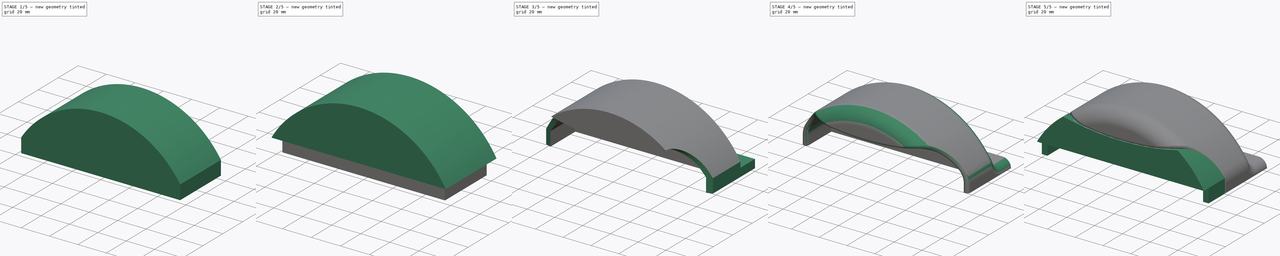
[diagram: build sequence overview — one tinted view per stage of 5, left to right]
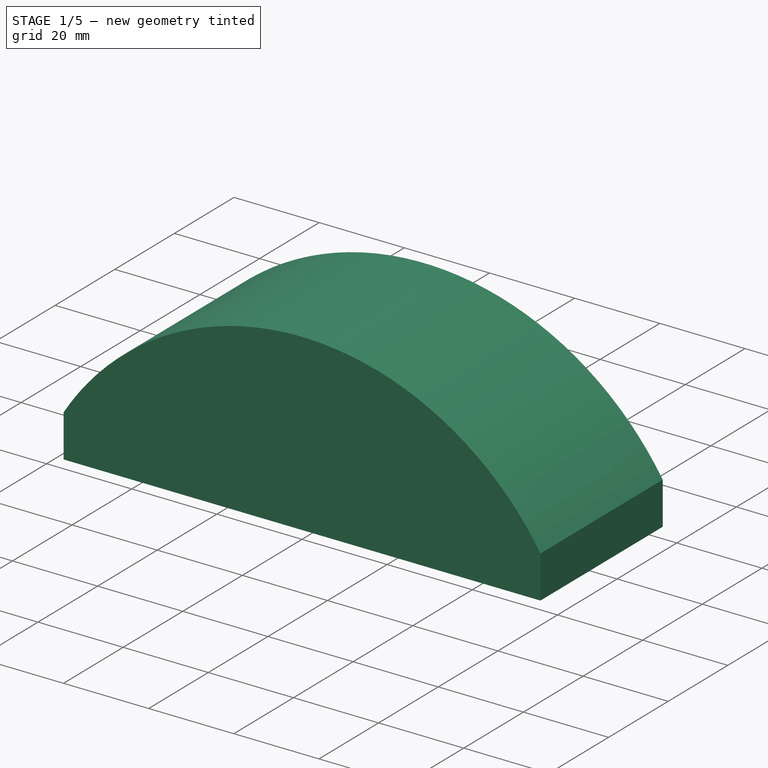
[diagram: stage 1 of 5 — iso view after this stage's code; geometry added in this stage tinted green]
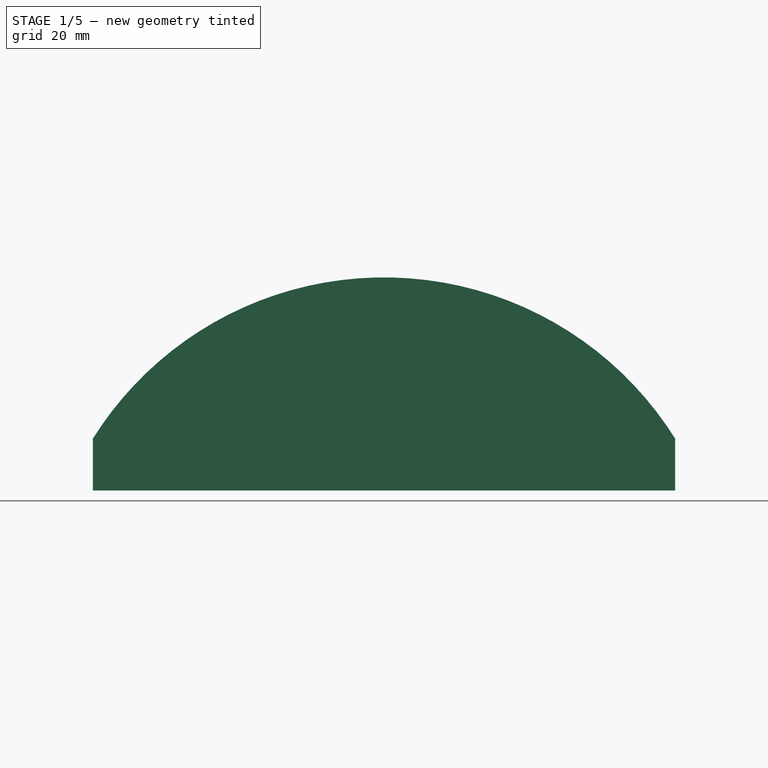
[diagram: stage 1 of 5 — front view after this stage's code; geometry added in this stage tinted green]
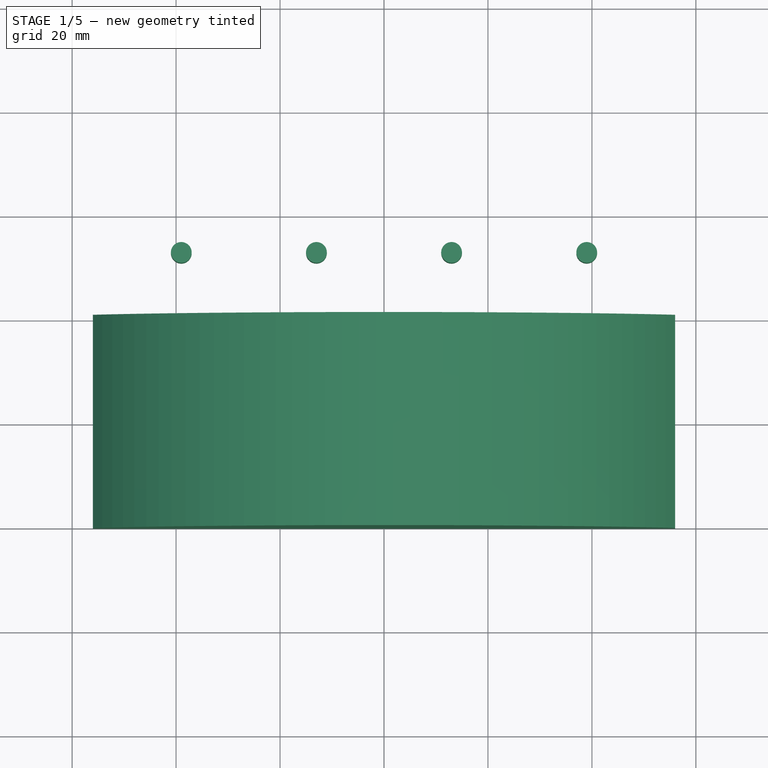
[diagram: stage 1 of 5 — top view after this stage's code; geometry added in this stage tinted green]
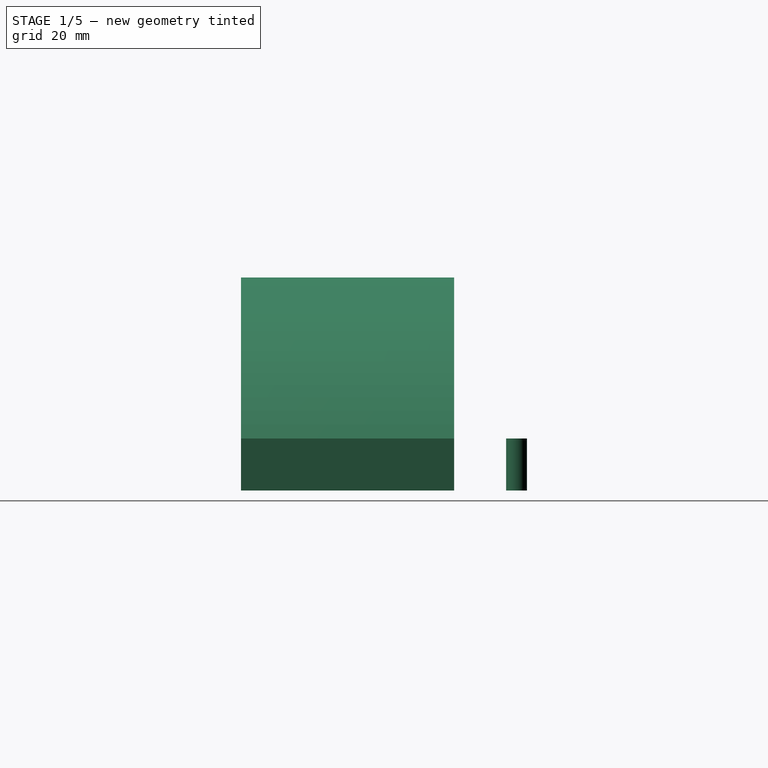
[diagram: stage 1 of 5 — right view after this stage's code; geometry added in this stage tinted green]
FCSTD DOCUMENT  (FreeCAD 0.18R4 (GitTag))
Label: Wheel Cover
License: All rights reserved
LicenseURL: http://en.wikipedia.org/wiki/All_rights_reserved
objects: Part::FeaturePython×7, Sketcher::SketchObject×5, Part::Fillet×5, Part::Box×3, Part::MultiFuse×3, Part::Face×3, App::DocumentObjectGroup×3, Part::Cut×2, Part::Extrusion×2, Raytracing::RayFeature×2, Part::Cylinder×1, Part::Sweep×1, Part::Chamfer×1, Raytracing::RayProject×1
note: 33 computed .brp shape members not serialized (recipe doc carries the construction recipe); baked Part::Feature solids carry a one-line shape summary decoded from their .brp

FEATURE [Part::Cylinder] Cylinder002  label="Cilindro001"
  Angle = 360
  AttacherType = Attacher::AttachEngine3D
  Height = 10
  Placement = pos=(0,53,0) rot=(0,0,1;0rad)
  Radius = 2
FEATURE [Part::FeaturePython] Array  # Draft array (typed FeaturePython)
  Angle = 360
  ArrayType = 0
  Axis = (0,0,1)
  Base = -> Cylinder002
  Center = (0,0,0)
  Fuse = false
  IntervalAxis = (0,0,0)
  IntervalX = (26,0,0)
  IntervalY = (0,1,0)
  IntervalZ = (0,0,1)
  NumberPolar = 1
  NumberX = 4
  NumberY = 1
  NumberZ = 1
  Placement = pos=(-39,0,0) rot=(0,0,1;0rad)
FEATURE [Part::Box] Box003  label="cube"
  AttacherType = Attacher::AttachEngine3D
  Height = 10
  Length = 112
  Placement = pos=(-56,0,0) rot=(0,0,1;0rad)
  Width = 41
FEATURE [Part::Face] Face003
  FaceMakerClass = Part::FaceMakerBullseye
  Sources = -> [Sketch003]
FEATURE [Part::Extrusion] Extrude
  Base = -> Face003
  Dir = (0,1,-2e-16)
  DirMode = 2
  FaceMakerClass = Part::FaceMakerBullseye
  LengthFwd = 41
  LengthRev = 0
  Solid = false
  Symmetric = false
FEATURE [Part::MultiFuse] Fusion  label="inner"
  Refine = true
  Shapes = -> [Box003,Extrude]
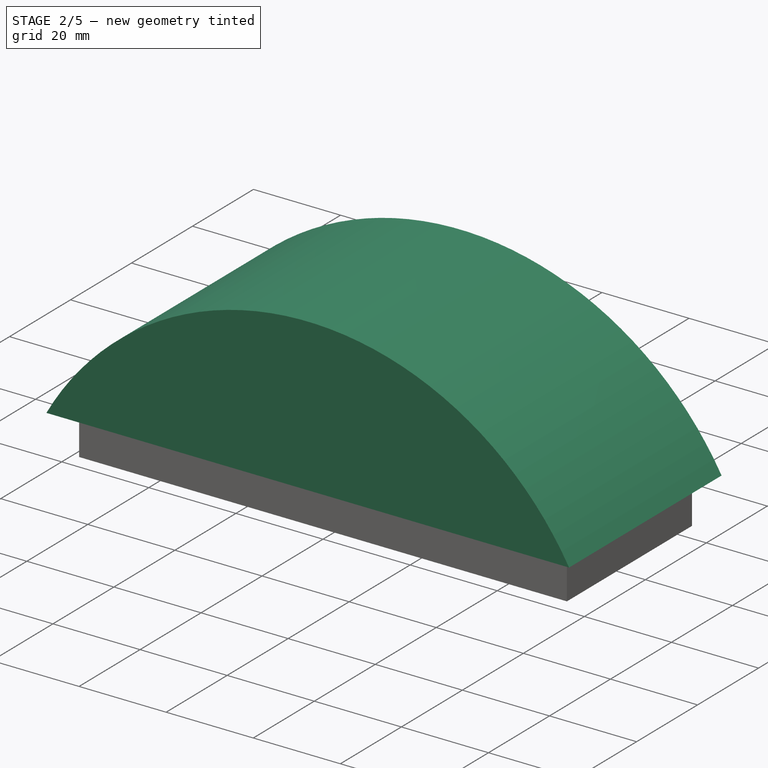
[diagram: stage 2 of 5 — iso view after this stage's code; geometry added in this stage tinted green]
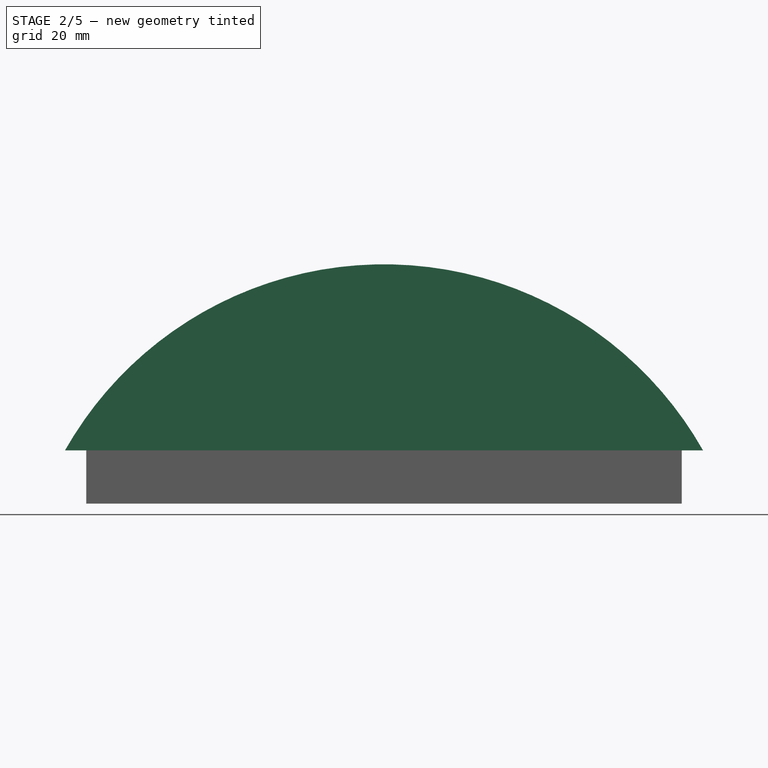
[diagram: stage 2 of 5 — front view after this stage's code; geometry added in this stage tinted green]
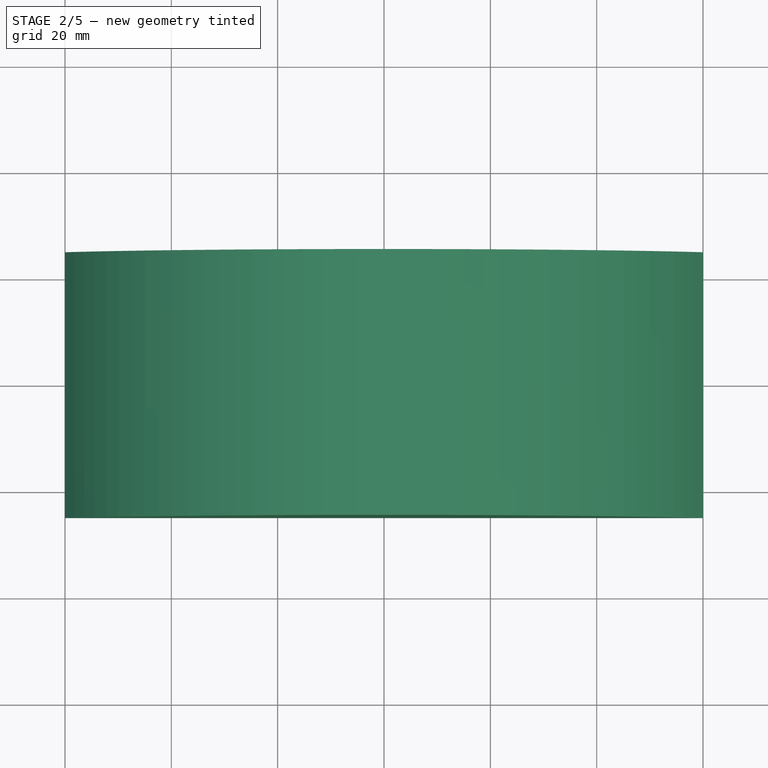
[diagram: stage 2 of 5 — top view after this stage's code; geometry added in this stage tinted green]
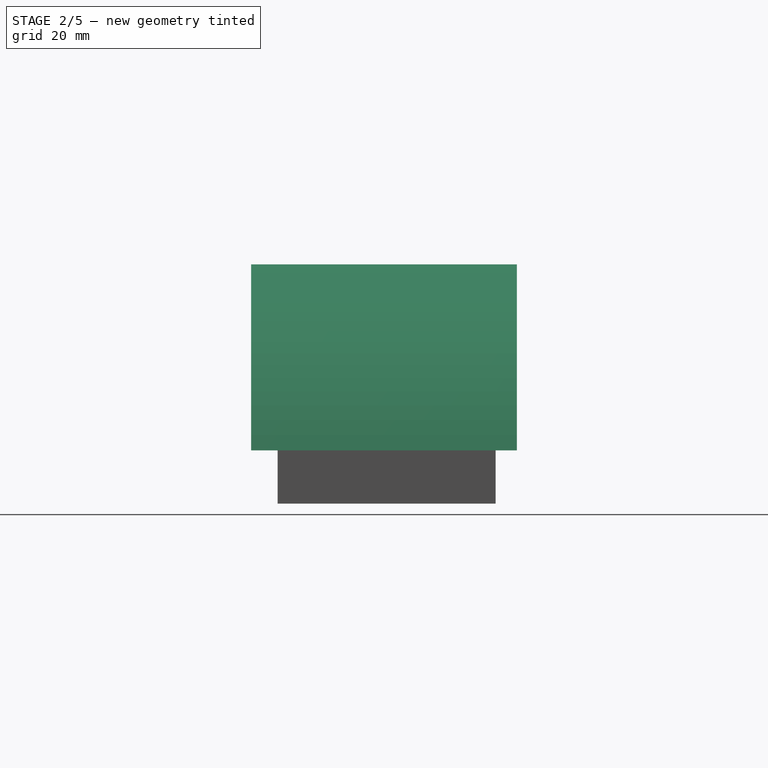
[diagram: stage 2 of 5 — right view after this stage's code; geometry added in this stage tinted green]
FEATURE [Part::Box] Box  label="base002"
  AttacherType = Attacher::AttachEngine3D
  Height = 6
  Length = 120
  Placement = pos=(-60,0,0) rot=(0,0,1;0rad)
  Width = 60
FEATURE [Part::Box] Box002  label="base001"
  AttacherType = Attacher::AttachEngine3D
  Height = 4
  Length = 120
  Placement = pos=(-60,0,6) rot=(0,0,1;0rad)
  Width = 45
FEATURE [Part::MultiFuse] Fusion002
  Refine = true
  Shapes = -> [Box,Box002]
FEATURE [Part::Cut] Cut  label="base"
  Base = -> Fusion002
  Refine = true
  Tool = -> Array
FEATURE [Sketcher::SketchObject] Sketch001  label="slice sketch"
  Placement = pos=(65,0,5) rot=(0.57735,0.57735,0.57735;2.0944rad)
  sketch-geometry (3):
    g0: LineSegment StartX=20 StartY=-10 StartZ=0 EndX=20 EndY=35 EndZ=0
    g1: LineSegment StartX=-5 StartY=60 StartZ=0 EndX=-19.9179 EndY=60 EndZ=0
    g2: ArcOfCircle CenterX=-5 CenterY=35 CenterZ=0 NormalX=0 NormalY=0 NormalZ=1 AngleXU=0 Radius=25 StartAngle=0 EndAngle=1.5708
  constraints (8):
    c: Vertical(g0)
    c: Horizontal(g1)
    c: DistanceX(g0) = 20
    c: Tangent(g1,g2) = -1.5708
    c: Tangent(g0,g2) = -1.5708
    c: DistanceX(g1,g0) = 25
    c: DistanceY(g-1,g1) = 60
    c: DistanceY(g0,g-1) = 10
FEATURE [Sketcher::SketchObject] Sketch
  ExternalGeometry = -> [Sketch001]
  Placement = pos=(0,0,60) rot=(1,0,0;1.22173rad)
  sketch-geometry (1):
    g0: ArcOfCircle CenterX=-4.33e-14 CenterY=171.392 CenterZ=0 NormalX=0 NormalY=0 NormalZ=1 AngleXU=0 Radius=180.513 StartAngle=4.34403 EndAngle=5.08075
  constraints (3):
    c: Coincident(g0,g-3)
    c: DistanceX(g0,g0) = 130
    c: Horizontal(g0,g0)
FEATURE [Part::Sweep] Sweep
  Frenet = false
  Placement = pos=(0,0,-25) rot=(0,0,1;0rad)
  Sections = -> [Sketch]
  Solid = false
  Spine = -> Sketch001 [Edge2,Edge1]
  Transition = 1
FEATURE [Sketcher::SketchObject] Sketch002  label="sketch"
  Placement = pos=(0,41,0) rot=(1,0,0;1.5708rad)
  sketch-geometry (4):
    g0: LineSegment StartX=-70 StartY=73.0691 StartZ=0 EndX=70 EndY=73.0691 EndZ=0
    g1: LineSegment StartX=70 StartY=73.0691 StartZ=0 EndX=70 EndY=-6.93093 EndZ=0
    g2: LineSegment StartX=70 StartY=-6.93093 StartZ=0 EndX=-70 EndY=-6.93093 EndZ=0
    g3: LineSegment StartX=-70 StartY=-6.93093 StartZ=0 EndX=-70 EndY=73.0691 EndZ=0
  constraints (8):
    c: Coincident(g0,g1)
    c: Coincident(g1,g2)
    c: Coincident(g2,g3)
    c: Coincident(g3,g0)
    c: DistanceX(g2,g1) = 140
    c: Symmetric(g1,g2,g-2)
    c: DistanceY(g1,g1) = 80
    c: Horizontal(g0)
FEATURE [Part::Face] Face  label="slice for printer"
  FaceMakerClass = Part::FaceMakerBullseye
  Sources = -> [Sketch002]
FEATURE [App::DocumentObjectGroup] Group  label="wheel shape slice"
  Group = -> [Sweep,Sketch001]
FEATURE [Sketcher::SketchObject] Sketch003
  ExternalGeometry = -> [Box003]
  Placement = pos=(0,0,0) rot=(-1,0,0;4.71239rad)
  sketch-geometry (3):
    g0: ArcOfCircle CenterX=-1.51e-14 CenterY=-25.0806 CenterZ=0 NormalX=0 NormalY=0 NormalZ=1 AngleXU=0 Radius=66.0806 StartAngle=0.559634 EndAngle=2.58196
    g1: LineSegment StartX=-56 StartY=10 StartZ=0 EndX=56 EndY=10 EndZ=0
    g2: LineSegment [constr] StartX=0 StartY=41 StartZ=0 EndX=0 EndY=0 EndZ=0
  constraints (8):
    c: Coincident(g1,g0)
    c: Coincident(g1,g0)
    c: PointOnObject(g2,g0)
    c: Coincident(g2,g-1)
    c: Vertical(g2)
    c: DistanceY(g-1,g2) = 41
    c: Coincident(g1,g-4)
    c: Coincident(g1,g-3)
FEATURE [Sketcher::SketchObject] Sketch004
  ExternalGeometry = -> [Cut]
  Placement = pos=(0,0,0) rot=(-1,0,0;4.71239rad)
  sketch-geometry (3):
    g0: ArcOfCircle CenterX=1.3e-15 CenterY=-23.9286 CenterZ=0 NormalX=0 NormalY=0 NormalZ=1 AngleXU=0 Radius=68.9286 StartAngle=0.514647 EndAngle=2.62695
    g1: LineSegment StartX=-60 StartY=10 StartZ=0 EndX=60 EndY=10 EndZ=0
    g2: LineSegment [constr] StartX=0 StartY=0 StartZ=0 EndX=0 EndY=45 EndZ=0
  constraints (8):
    c: Coincident(g0,g-3)
    c: Coincident(g0,g-4)
    c: Coincident(g1,g0)
    c: Coincident(g1,g0)
    c: PointOnObject(g2,g0)
    c: Vertical(g2)
    c: Coincident(g-1,g2)
    c: DistanceY(g0,g2) = 35
FEATURE [Part::Face] Face002
  FaceMakerClass = Part::FaceMakerBullseye
  Sources = -> [Sketch004]
FEATURE [Part::Extrusion] Extrude001  label="base wheel"
  Base = -> Face002
  Dir = (0,1,-2e-16)
  DirMode = 2
  FaceMakerClass = Part::FaceMakerBullseye
  LengthFwd = 50
  LengthRev = 0
  Placement = pos=(0,-5,0) rot=(0,0,1;0rad)
  Solid = false
  Symmetric = false
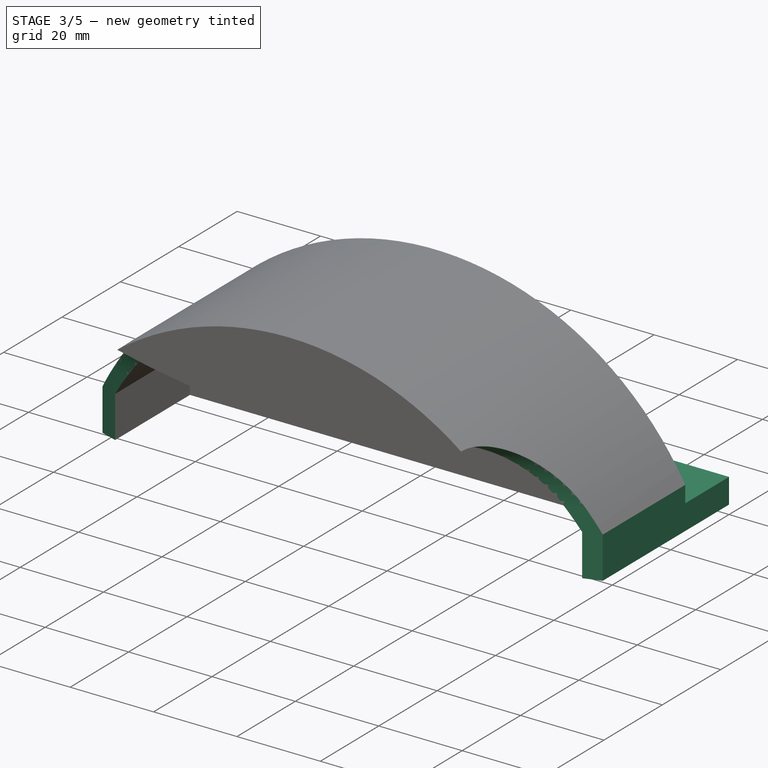
[diagram: stage 3 of 5 — iso view after this stage's code; geometry added in this stage tinted green]
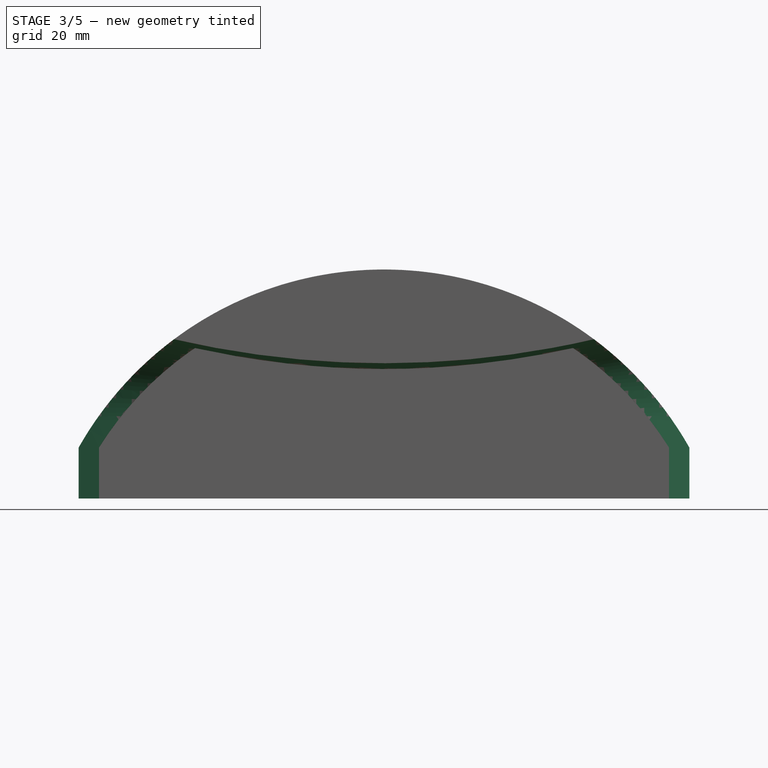
[diagram: stage 3 of 5 — front view after this stage's code; geometry added in this stage tinted green]
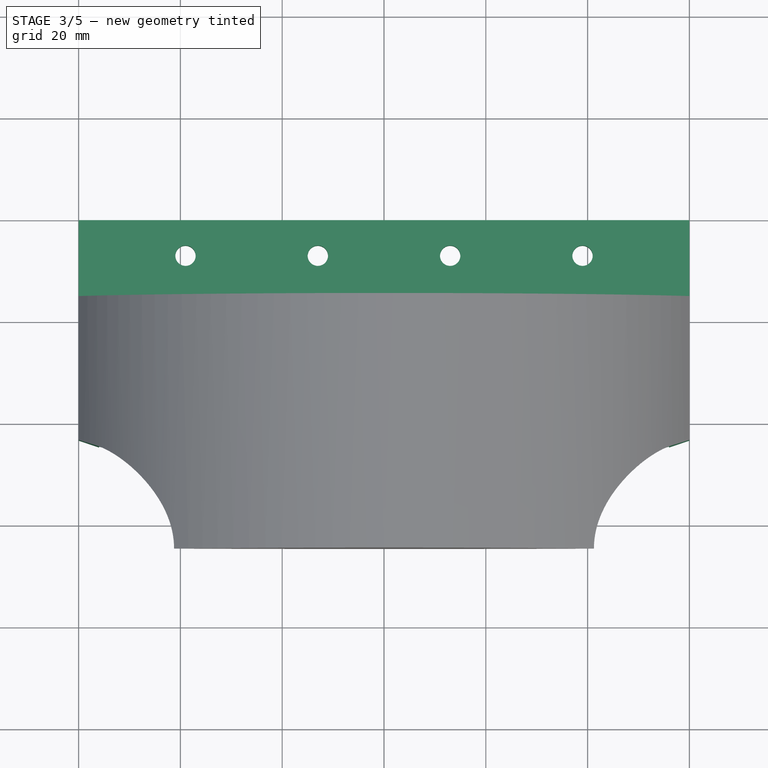
[diagram: stage 3 of 5 — top view after this stage's code; geometry added in this stage tinted green]
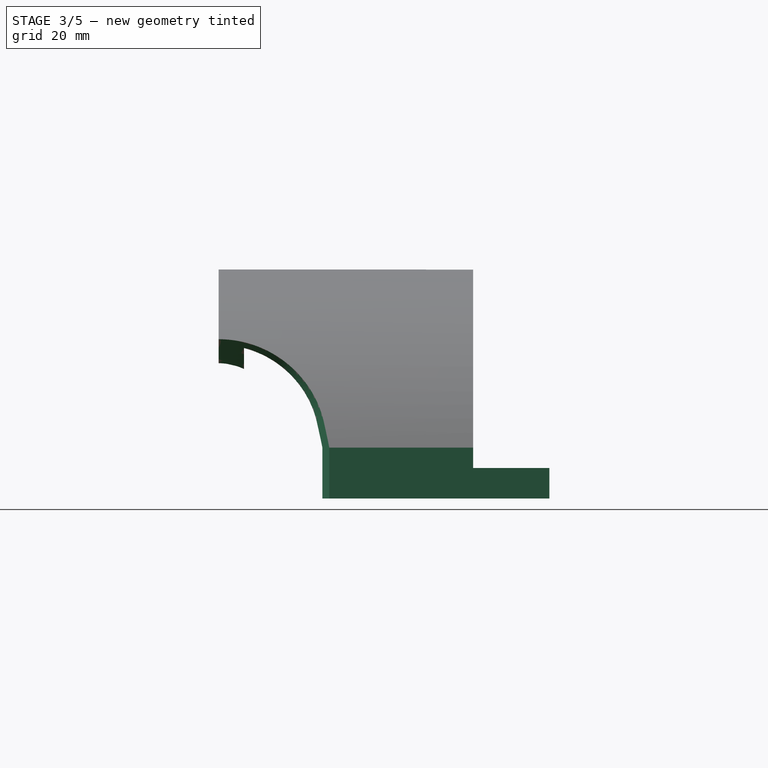
[diagram: stage 3 of 5 — right view after this stage's code; geometry added in this stage tinted green]
FEATURE [Part::MultiFuse] Fusion003  label="outer"
  Refine = true
  Shapes = -> [Extrude001,Cut]
FEATURE [Part::Cut] Cut001  label="wheel shape"
  Base = -> Fusion003
  Refine = true
  Tool = -> Fusion
FEATURE [Part::FeaturePython] Slice  # WARN: FeaturePython — macro-defined, semantics opaque (R4)
  Base = -> Cut001
  Mode = 1
  Tolerance = 0
  Tools = -> [Sweep]
FEATURE [Part::FeaturePython] Slice_child1  label="Slice.1"  # WARN: FeaturePython — macro-defined, semantics opaque (R4)
  Base = -> Slice
  FilterType = 1
  Invert = false
  OverrideMaxVal = 0
  WindowFrom = 80
  WindowTo = 100
  items = 1
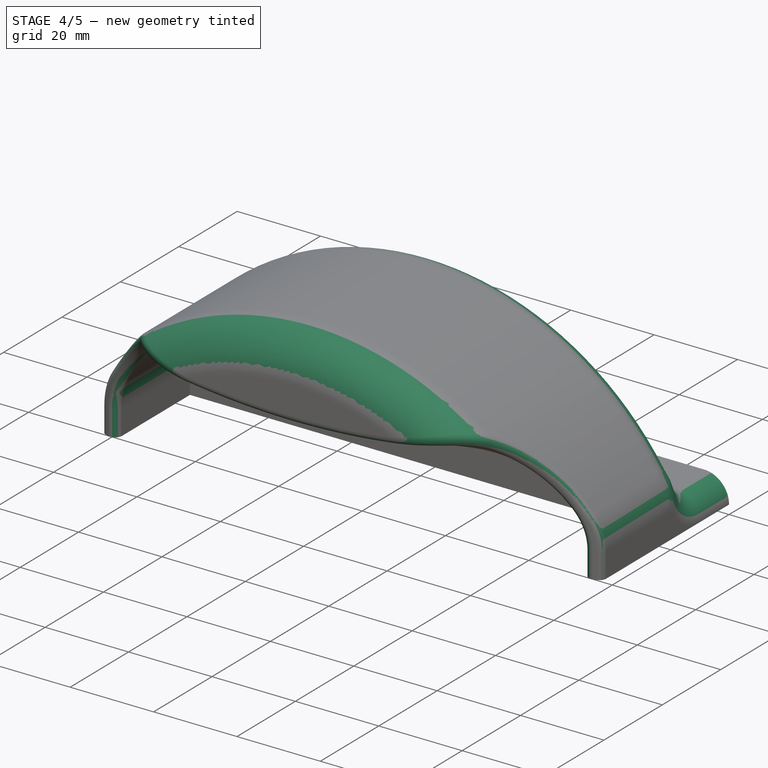
[diagram: stage 4 of 5 — iso view after this stage's code; geometry added in this stage tinted green]
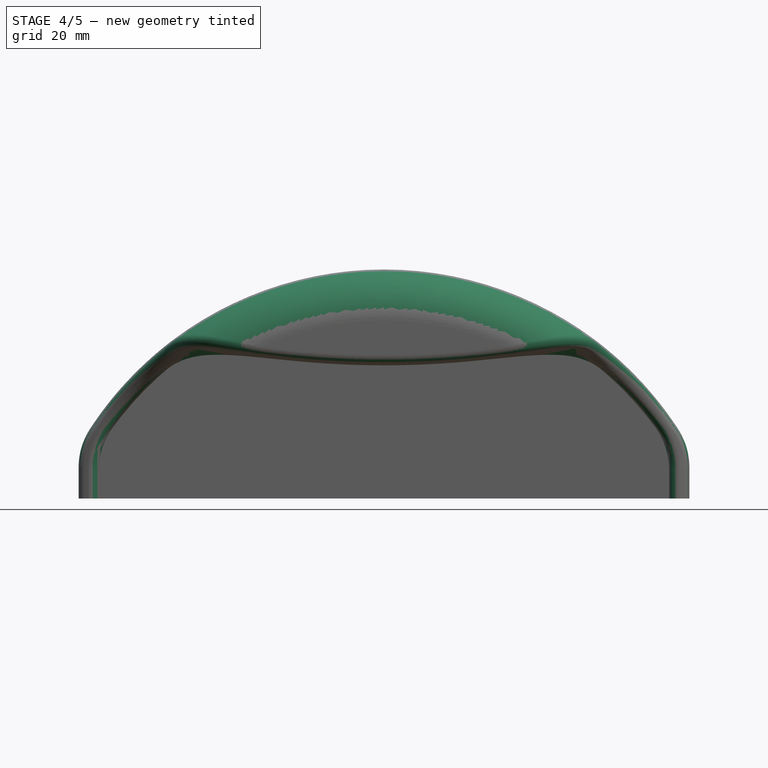
[diagram: stage 4 of 5 — front view after this stage's code; geometry added in this stage tinted green]
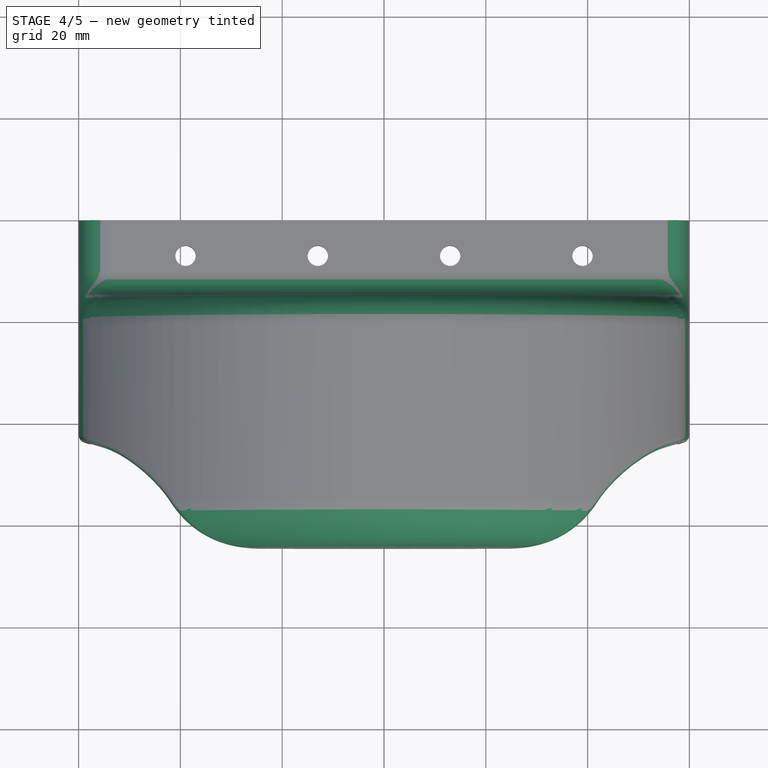
[diagram: stage 4 of 5 — top view after this stage's code; geometry added in this stage tinted green]
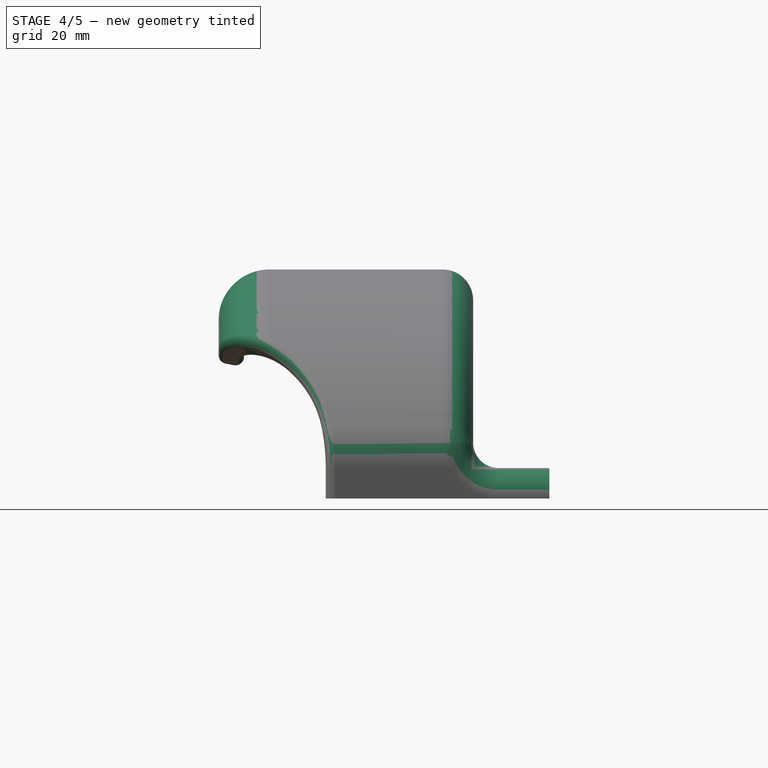
[diagram: stage 4 of 5 — right view after this stage's code; geometry added in this stage tinted green]
FEATURE [App::DocumentObjectGroup] GrExplode_Slice  label="wheel slices"
  Group = -> [Slice_child0,Slice_child1]
FEATURE [Part::Fillet] Fillet
  Base = -> Slice_child1
  Edges = 2 edges r=10: [Edge1,Edge32]
FEATURE [Part::Fillet] Fillet001
  Base = -> Fillet
  Edges = 4 edges r=14: [Edge5,Edge8,Edge38,Edge40]
FEATURE [Part::Fillet] Fillet002
  Base = -> Fillet001
  Edges = 24 edges r=1.7: [Edge1,Edge3,Edge7,Edge8,Edge9,Edge10,Edge11,Edge12,Edge14,Edge15,Edge18,Edge19,Edge20,Edge21,Edge22,Edge23,Edge24,Edge25,Edge26,Edge32,Edge34,Edge35,Edge37,Edge38]
FEATURE [Part::Fillet] Fillet003
  Base = -> Fillet002
  Edges = 1 edges r=5: [Edge18]
FEATURE [Part::Fillet] Fillet004
  Base = -> Fillet003
  Edges = 1 edges r=5.99: [Edge8]
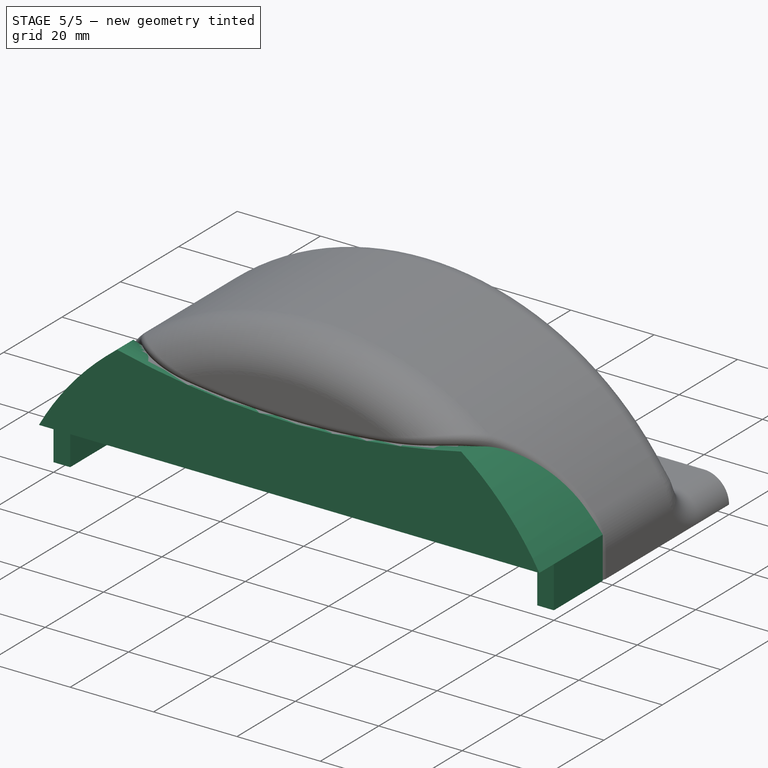
[diagram: stage 5 of 5 — iso view after this stage's code; geometry added in this stage tinted green]
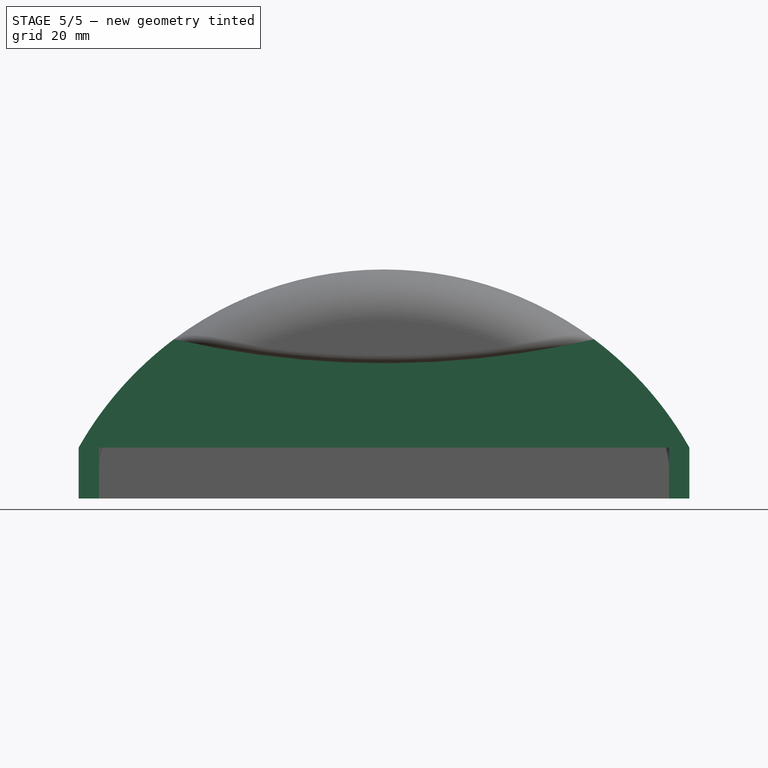
[diagram: stage 5 of 5 — front view after this stage's code; geometry added in this stage tinted green]
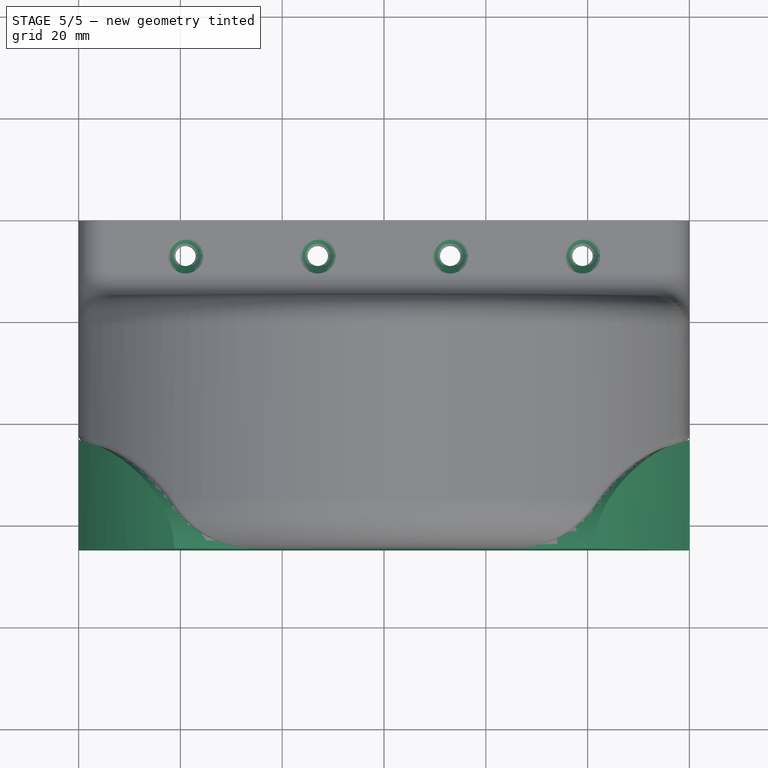
[diagram: stage 5 of 5 — top view after this stage's code; geometry added in this stage tinted green]
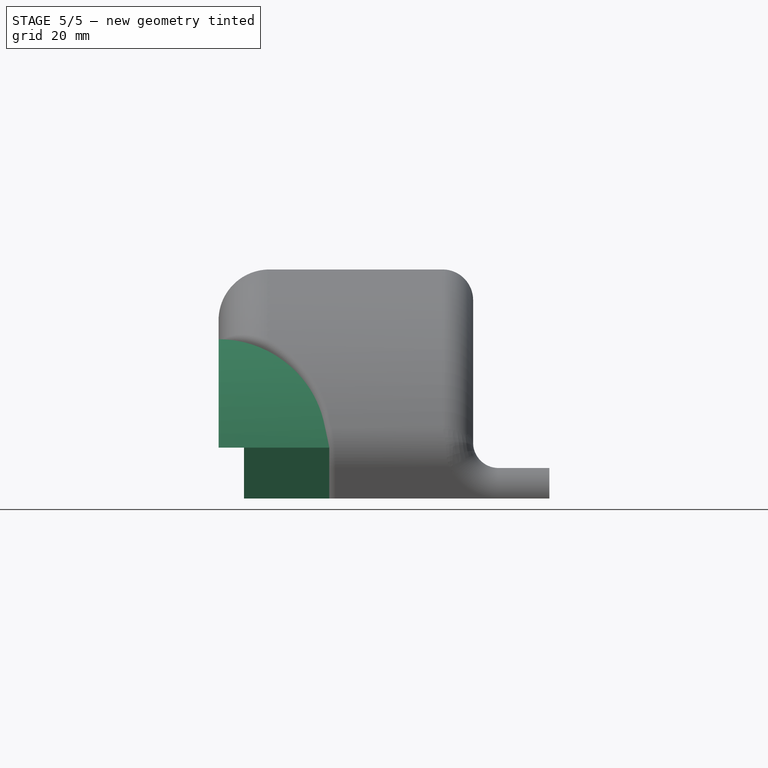
[diagram: stage 5 of 5 — right view after this stage's code; geometry added in this stage tinted green]
FEATURE [Part::FeaturePython] Slice_child0  label="Slice.0"  # WARN: FeaturePython — macro-defined, semantics opaque (R4)
  Base = -> Slice
  FilterType = 1
  Invert = false
  OverrideMaxVal = 0
  WindowFrom = 80
  WindowTo = 100
  items = 0
FEATURE [Part::Chamfer] Chamfer  label="rounded"
  Base = -> Fillet004
  Edges = 4 edges r=1.5: [Edge101,Edge102,Edge103,Edge104]
FEATURE [Part::FeaturePython] Slice001  # WARN: FeaturePython — macro-defined, semantics opaque (R4)
  Base = -> Chamfer
  Mode = 1
  Tolerance = 0
  Tools = -> [Face]
FEATURE [Part::FeaturePython] Slice001_child0  label="Slice001.0"  # WARN: FeaturePython — macro-defined, semantics opaque (R4)
  Base = -> Slice001
  FilterType = 1
  Invert = false
  OverrideMaxVal = 0
  WindowFrom = 80
  WindowTo = 100
  items = 0
FEATURE [Part::FeaturePython] Slice001_child1  label="Slice001.1"  # WARN: FeaturePython — macro-defined, semantics opaque (R4)
  Base = -> Slice001
  FilterType = 1
  Invert = false
  OverrideMaxVal = 0
  WindowFrom = 80
  WindowTo = 100
  items = 1
FEATURE [App::DocumentObjectGroup] GrExplode_Slice001  label="wheel printer slices"
  Group = -> [Slice001_child0,Slice001_child1]
FEATURE [Raytracing::RayFeature] Slice001_child0_View
  Result = <blob: 120928 chars omitted>
  Source = -> Slice001_child0
  Transparency = 0
FEATURE [Raytracing::RayFeature] Slice001_child1_View
  Result = <blob: 251312 chars omitted>
  Source = -> Slice001_child1
  Transparency = 0
FEATURE [Raytracing::RayProject] PovProject
  Camera = // declares position and view direction\n\n// Generated by FreeCAD (http://www.freecadweb.org/)\n#declare cam_location =  <-13.011,218.197,101.492>;\n#declare cam_look_at  = <-3.86452,10.3696,23.3662>;\n#declare cam_sky      = <0.0124906,0.35233,-0.935792>;\n#declare cam_angle    = 45; \ncamera {\n  location  cam_location\n  look_at   cam_look_at\n  sky       cam_sky\n  angle     cam_angle \n  right x*1280/720\n}
  Group = -> [Slice001_child0_View,Slice001_child1_View]
  Template = C:/Program Files/FreeCAD 0.18/data/Mod/Raytracing/Templates/RadiosityOutdoorHQ.pov
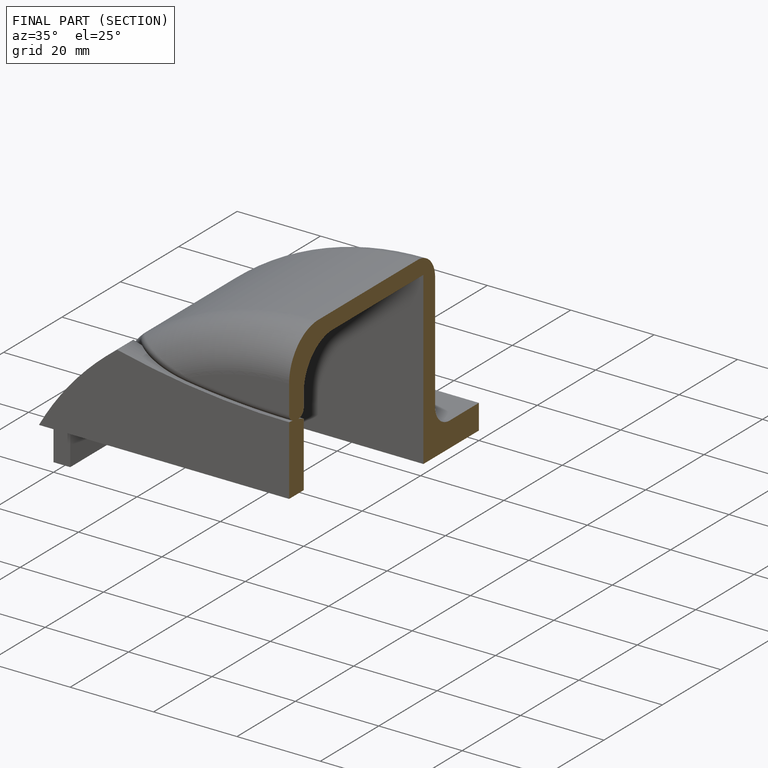
[diagram: finished part — half-section view (interior)]
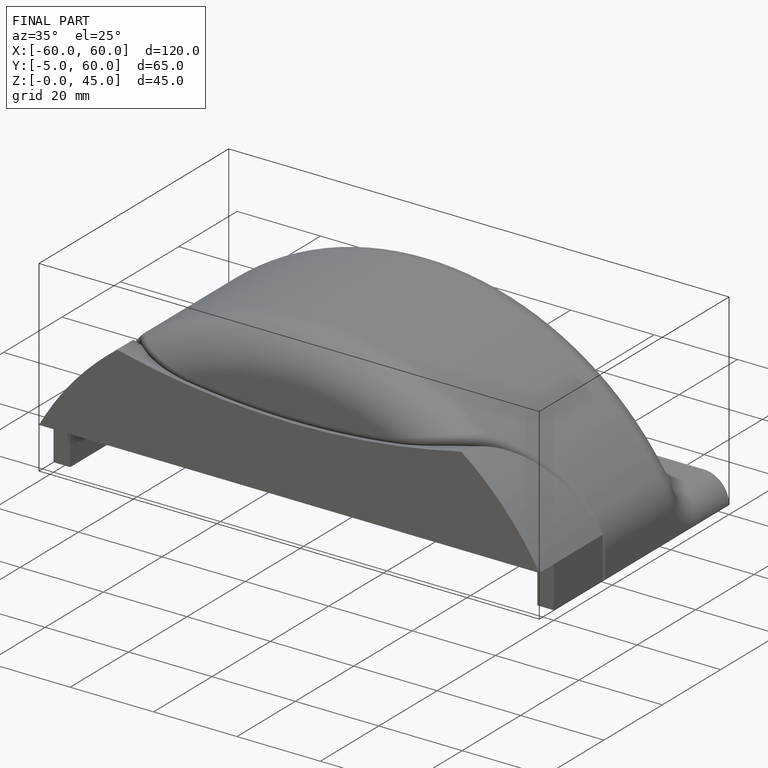
[diagram: finished part — iso view with bounding-box wireframe]
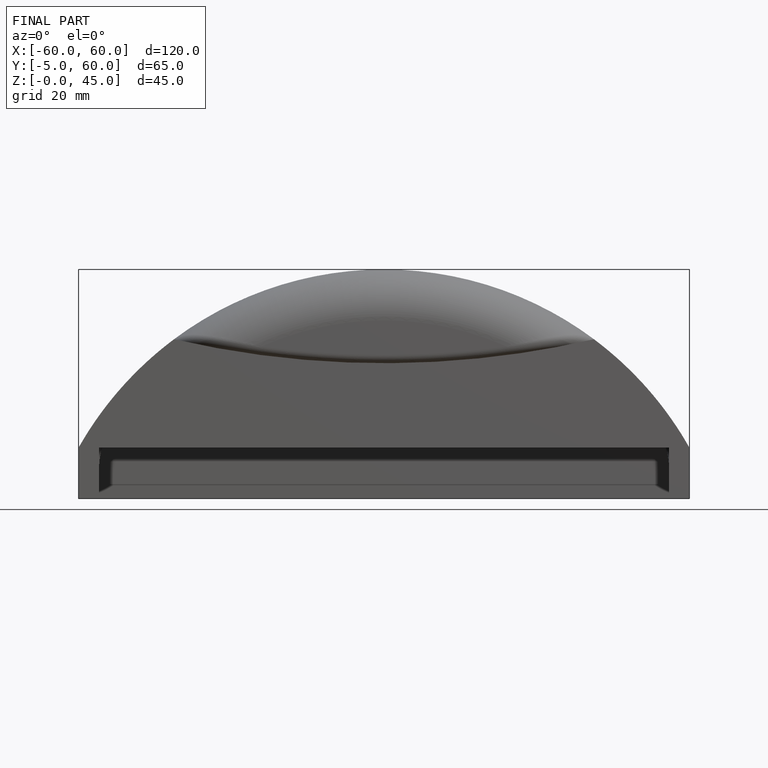
[diagram: finished part — front view with bounding-box wireframe]
